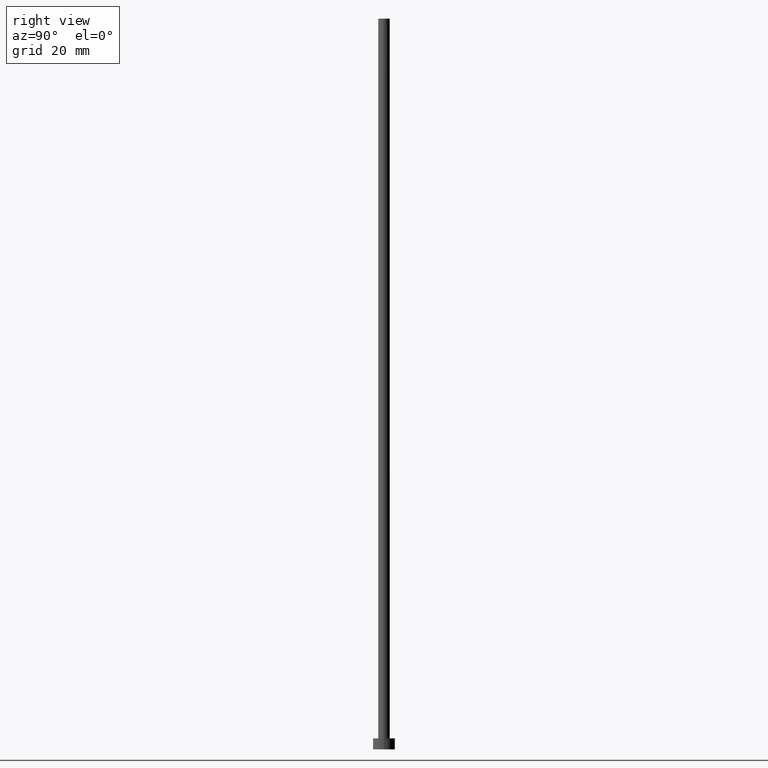
[diagram: clean part render]
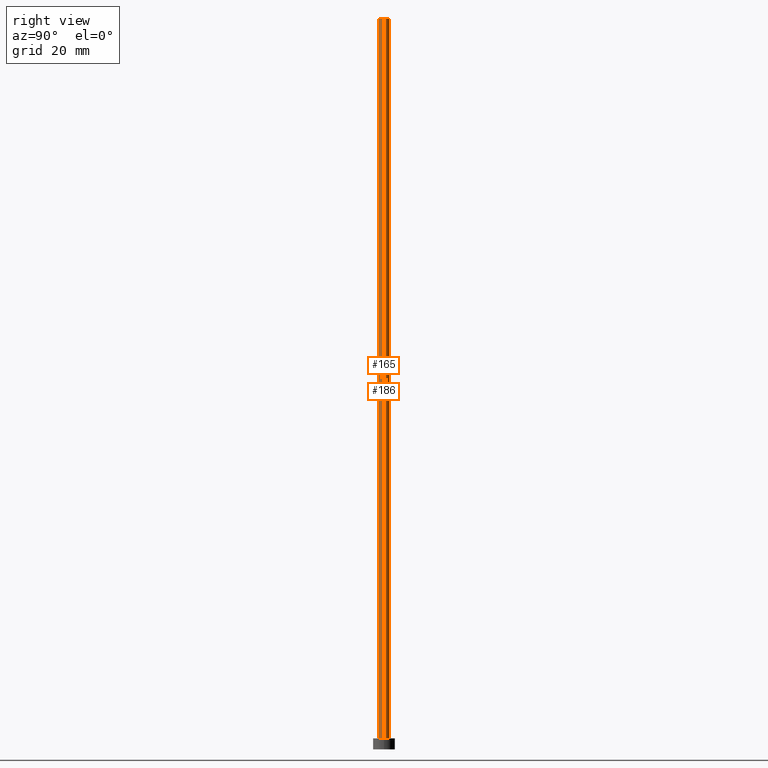
[diagram: same view with one multi-face feature highlighted, each face labeled with its STEP entity id]
A machine part, right view. The highlighted faces form ONE feature: a constant-radius fillet chain: 2 tangent blend faces with common blend radius 1.6 mm. The faces share edges in the B-rep.
Their STEP definitions:
[1] entity #165 (Cylinder):
#7 = CARTESIAN_POINT ( 'NONE',  ( -1.600000000000000089, 0.000000000000000000, 3.000000000000000000 ) ) ;
#17 = DIRECTION ( 'NONE',  ( -0.000000000000000000, -0.000000000000000000, -1.000000000000000000 ) ) ;
#29 = DIRECTION ( 'NONE',  ( -0.000000000000000000, -0.000000000000000000, -1.000000000000000000 ) ) ;
#30 = DIRECTION ( 'NONE',  ( -1.000000000000000000, 0.000000000000000000, 0.000000000000000000 ) ) ;
#32 = AXIS2_PLACEMENT_3D ( 'NONE', #71, #131, #201 ) ;
#34 = ORIENTED_EDGE ( 'NONE', *, *, #141, .T. ) ;
#36 = VECTOR ( 'NONE', #17, 1000.000000000000000 ) ;
#41 = VERTEX_POINT ( 'NONE', #223 ) ;
#50 = DIRECTION ( 'NONE',  ( 0.000000000000000000, 0.000000000000000000, 1.000000000000000000 ) ) ;
#53 = CYLINDRICAL_SURFACE ( 'NONE', #129, 1.600000000000000089 ) ;
#56 = AXIS2_PLACEMENT_3D ( 'NONE', #213, #50, #250 ) ;
#60 = EDGE_LOOP ( 'NONE', ( #212, #246, #220, #34 ) ) ;
#64 = CIRCLE ( 'NONE', #32, 1.600000000000000089 ) ;
#71 = CARTESIAN_POINT ( 'NONE',  ( 0.000000000000000000, 0.000000000000000000, 200.0000000000000000 ) ) ;
#72 = VECTOR ( 'NONE', #172, 1000.000000000000000 ) ;
#73 = CARTESIAN_POINT ( 'NONE',  ( -1.600000000000000089, 0.000000000000000000, 200.0000000000000000 ) ) ;
#79 = VERTEX_POINT ( 'NONE', #7 ) ;
#87 = FACE_OUTER_BOUND ( 'NONE', #60, .T. ) ;
#94 = CARTESIAN_POINT ( 'NONE',  ( 1.600000000000000089, 1.959434878635765230E-16, 200.0000000000000000 ) ) ;
#111 = LINE ( 'NONE', #132, #72 ) ;
#129 = AXIS2_PLACEMENT_3D ( 'NONE', #234, #29, #30 ) ;
#131 = DIRECTION ( 'NONE',  ( 0.000000000000000000, 0.000000000000000000, 1.000000000000000000 ) ) ;
#132 = CARTESIAN_POINT ( 'NONE',  ( 1.600000000000000089, 1.959434878635765230E-16, 200.0000000000000000 ) ) ;
#141 = EDGE_CURVE ( 'NONE', #79, #177, #170, .T. ) ;
#165 = ADVANCED_FACE ( 'NONE', ( #87 ), #53, .T. ) ;
#170 = CIRCLE ( 'NONE', #56, 1.600000000000000089 ) ;
#172 = DIRECTION ( 'NONE',  ( -0.000000000000000000, -0.000000000000000000, -1.000000000000000000 ) ) ;
#177 = VERTEX_POINT ( 'NONE', #192 ) ;
#187 = EDGE_CURVE ( 'NONE', #205, #177, #111, .T. ) ;
#192 = CARTESIAN_POINT ( 'NONE',  ( 1.600000000000000089, 1.959434878635765230E-16, 3.000000000000000000 ) ) ;
#199 = EDGE_CURVE ( 'NONE', #41, #205, #64, .T. ) ;
#201 = DIRECTION ( 'NONE',  ( 1.000000000000000000, 0.000000000000000000, 0.000000000000000000 ) ) ;
#205 = VERTEX_POINT ( 'NONE', #94 ) ;
#212 = ORIENTED_EDGE ( 'NONE', *, *, #187, .F. ) ;
#213 = CARTESIAN_POINT ( 'NONE',  ( 0.000000000000000000, 0.000000000000000000, 3.000000000000000000 ) ) ;
#218 = LINE ( 'NONE', #73, #36 ) ;
#220 = ORIENTED_EDGE ( 'NONE', *, *, #238, .T. ) ;
#223 = CARTESIAN_POINT ( 'NONE',  ( -1.600000000000000089, 0.000000000000000000, 200.0000000000000000 ) ) ;
#234 = CARTESIAN_POINT ( 'NONE',  ( 0.000000000000000000, 0.000000000000000000, 200.0000000000000000 ) ) ;
#238 = EDGE_CURVE ( 'NONE', #41, #79, #218, .T. ) ;
#246 = ORIENTED_EDGE ( 'NONE', *, *, #199, .F. ) ;
#250 = DIRECTION ( 'NONE',  ( 1.000000000000000000, 0.000000000000000000, 0.000000000000000000 ) ) ;
[2] entity #186 (Cylinder):
#7 = CARTESIAN_POINT ( 'NONE',  ( -1.600000000000000089, 0.000000000000000000, 3.000000000000000000 ) ) ;
#17 = DIRECTION ( 'NONE',  ( -0.000000000000000000, -0.000000000000000000, -1.000000000000000000 ) ) ;
#24 = ORIENTED_EDGE ( 'NONE', *, *, #238, .F. ) ;
#35 = DIRECTION ( 'NONE',  ( -0.000000000000000000, -0.000000000000000000, -1.000000000000000000 ) ) ;
#36 = VECTOR ( 'NONE', #17, 1000.000000000000000 ) ;
#41 = VERTEX_POINT ( 'NONE', #223 ) ;
#48 = ORIENTED_EDGE ( 'NONE', *, *, #86, .F. ) ;
#54 = ORIENTED_EDGE ( 'NONE', *, *, #187, .T. ) ;
#55 = DIRECTION ( 'NONE',  ( -1.000000000000000000, 0.000000000000000000, 0.000000000000000000 ) ) ;
#63 = DIRECTION ( 'NONE',  ( 0.000000000000000000, 0.000000000000000000, 1.000000000000000000 ) ) ;
#68 = ORIENTED_EDGE ( 'NONE', *, *, #89, .T. ) ;
#72 = VECTOR ( 'NONE', #172, 1000.000000000000000 ) ;
#73 = CARTESIAN_POINT ( 'NONE',  ( -1.600000000000000089, 0.000000000000000000, 200.0000000000000000 ) ) ;
#79 = VERTEX_POINT ( 'NONE', #7 ) ;
#81 = DIRECTION ( 'NONE',  ( 0.000000000000000000, 0.000000000000000000, 1.000000000000000000 ) ) ;
#86 = EDGE_CURVE ( 'NONE', #205, #41, #92, .T. ) ;
#88 = CYLINDRICAL_SURFACE ( 'NONE', #119, 1.600000000000000089 ) ;
#89 = EDGE_CURVE ( 'NONE', #177, #79, #107, .T. ) ;
#92 = CIRCLE ( 'NONE', #100, 1.600000000000000089 ) ;
#94 = CARTESIAN_POINT ( 'NONE',  ( 1.600000000000000089, 1.959434878635765230E-16, 200.0000000000000000 ) ) ;
#100 = AXIS2_PLACEMENT_3D ( 'NONE', #244, #63, #140 ) ;
#107 = CIRCLE ( 'NONE', #156, 1.600000000000000089 ) ;
#111 = LINE ( 'NONE', #132, #72 ) ;
#119 = AXIS2_PLACEMENT_3D ( 'NONE', #144, #35, #55 ) ;
#132 = CARTESIAN_POINT ( 'NONE',  ( 1.600000000000000089, 1.959434878635765230E-16, 200.0000000000000000 ) ) ;
#140 = DIRECTION ( 'NONE',  ( 1.000000000000000000, 0.000000000000000000, 0.000000000000000000 ) ) ;
#144 = CARTESIAN_POINT ( 'NONE',  ( 0.000000000000000000, 0.000000000000000000, 200.0000000000000000 ) ) ;
#156 = AXIS2_PLACEMENT_3D ( 'NONE', #228, #81, #160 ) ;
#160 = DIRECTION ( 'NONE',  ( 1.000000000000000000, 0.000000000000000000, 0.000000000000000000 ) ) ;
#163 = FACE_OUTER_BOUND ( 'NONE', #185, .T. ) ;
#172 = DIRECTION ( 'NONE',  ( -0.000000000000000000, -0.000000000000000000, -1.000000000000000000 ) ) ;
#177 = VERTEX_POINT ( 'NONE', #192 ) ;
#185 = EDGE_LOOP ( 'NONE', ( #48, #54, #68, #24 ) ) ;
#186 = ADVANCED_FACE ( 'NONE', ( #163 ), #88, .T. ) ;
#187 = EDGE_CURVE ( 'NONE', #205, #177, #111, .T. ) ;
#192 = CARTESIAN_POINT ( 'NONE',  ( 1.600000000000000089, 1.959434878635765230E-16, 3.000000000000000000 ) ) ;
#205 = VERTEX_POINT ( 'NONE', #94 ) ;
#218 = LINE ( 'NONE', #73, #36 ) ;
#223 = CARTESIAN_POINT ( 'NONE',  ( -1.600000000000000089, 0.000000000000000000, 200.0000000000000000 ) ) ;
#228 = CARTESIAN_POINT ( 'NONE',  ( 0.000000000000000000, 0.000000000000000000, 3.000000000000000000 ) ) ;
#238 = EDGE_CURVE ( 'NONE', #41, #79, #218, .T. ) ;
#244 = CARTESIAN_POINT ( 'NONE',  ( 0.000000000000000000, 0.000000000000000000, 200.0000000000000000 ) ) ;